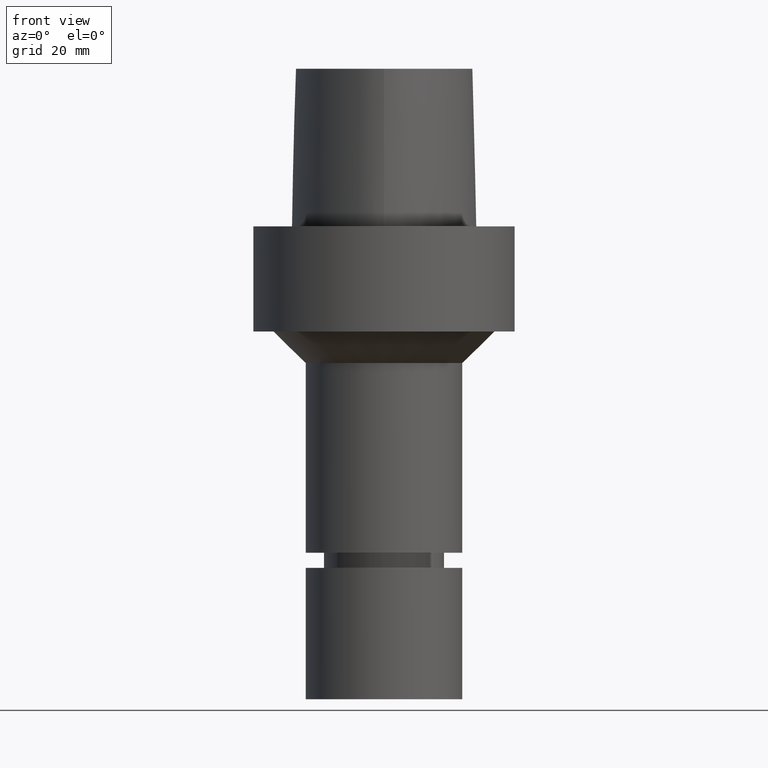
[diagram: clean part render]
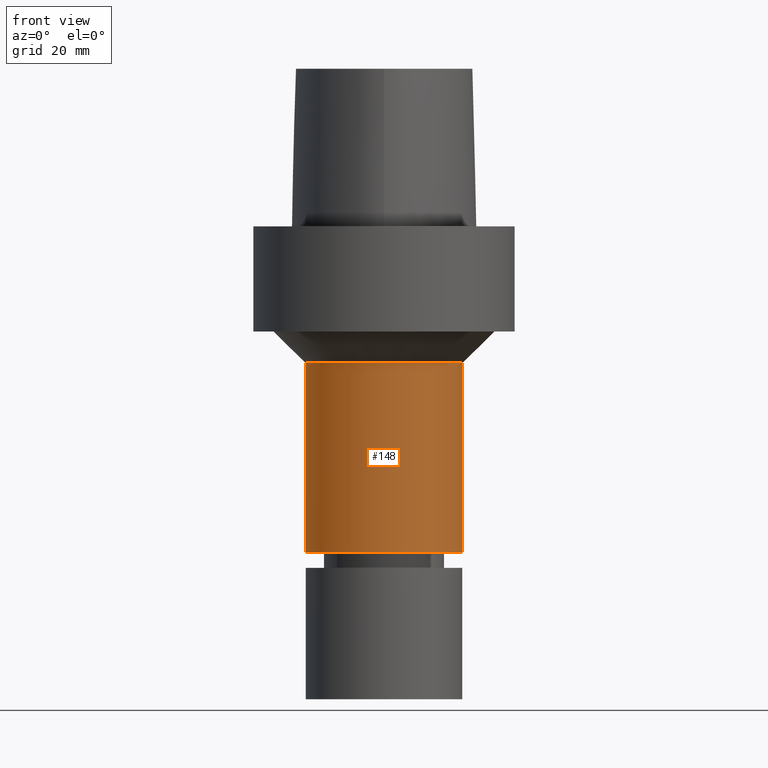
[diagram: same view with one face highlighted and labeled with its STEP entity id]
A machine part, front view. The second image highlights one B-rep face of the part: STEP entity #148.
In plain terms, the highlighted cylindrical surface (bore or boss wall) has radius 15 mm, axis along (0, 0, -1).
Its self-contained STEP definition (entity closure, byte-faithful):
#68=EDGE_CURVE('Unnamed[1]',#173,#173,#174,.T.);
#127=EDGE_CURVE('Unnamed[1]',#260,#260,#261,.T.);
#148=ADVANCED_FACE('Unnamed[1]',(#290,#291),#292,.T.);
#173=VERTEX_POINT('',#314);
#174=CIRCLE('',#315,15.0000000000003);
#260=VERTEX_POINT('',#853);
#261=CIRCLE('',#854,15.0000000000003);
#290=FACE_BOUND('',#986,.T.);
#291=FACE_BOUND('',#987,.T.);
#292=CYLINDRICAL_SURFACE('',#988,15.0000000000003);
#314=CARTESIAN_POINT('',(3.80252831135249E-015,15.0000000000003,-62.0999999999994));
#315=AXIS2_PLACEMENT_3D('',#990,#991,#992);
#853=CARTESIAN_POINT('',(1.59204083889156E-015,15.0000000000003,-26.0));
#854=AXIS2_PLACEMENT_3D('',#1082,#1083,#1084);
#986=EDGE_LOOP('',(#1114));
#987=EDGE_LOOP('',(#1115));
#988=AXIS2_PLACEMENT_3D('',#1116,#1117,#1118);
#990=CARTESIAN_POINT('',(3.80252831135249E-015,7.60505662270498E-015,-62.0999999999994));
#991=DIRECTION('',(6.12323399573677E-017,1.22464679914735E-016,-1.0));
#992=DIRECTION('',(-1.23259516440783E-032,1.0,1.22464679914735E-016));
#1082=CARTESIAN_POINT('',(1.59204083889156E-015,3.18408167778312E-015,-26.0));
#1083=DIRECTION('',(6.12323399573677E-017,1.22464679914735E-016,-1.0));
#1084=DIRECTION('',(-1.23259516440783E-032,1.0,1.22464679914735E-016));
#1114=ORIENTED_EDGE('',*,*,#68,.F.);
#1115=ORIENTED_EDGE('',*,*,#127,.T.);
#1116=CARTESIAN_POINT('',(2.69728457512203E-015,5.39456915024405E-015,-44.0499999999997));
#1117=DIRECTION('',(6.12323399573677E-017,1.22464679914735E-016,-1.0));
#1118=DIRECTION('',(-1.23259516440783E-032,1.0,1.22464679914735E-016));